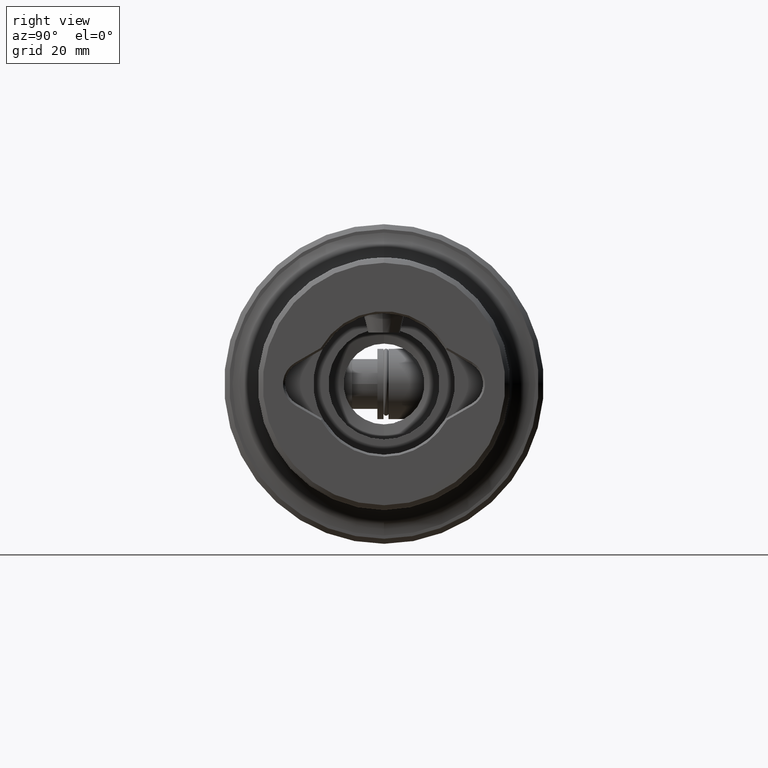
[diagram: clean part render]
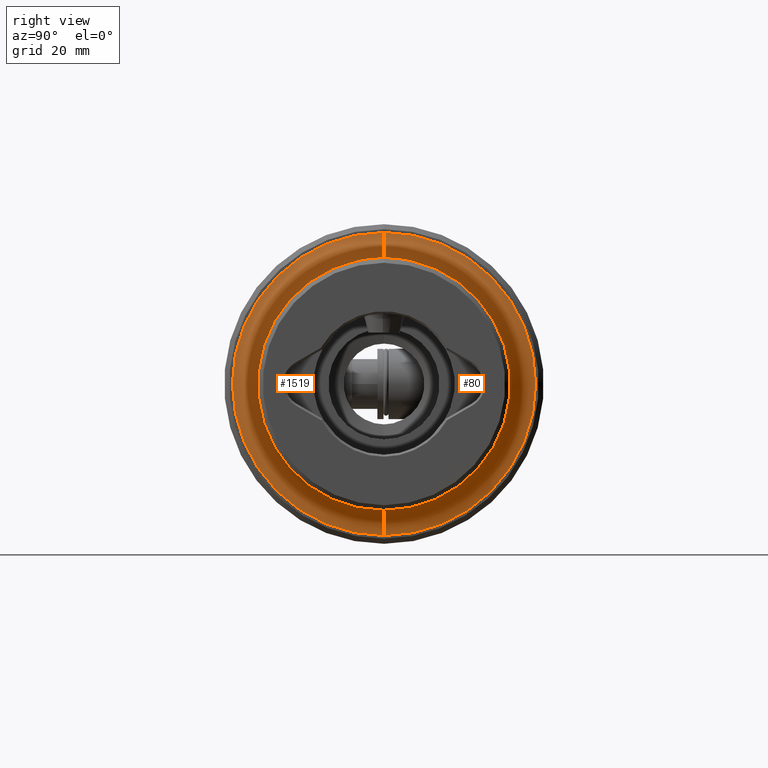
[diagram: same view with one multi-face feature highlighted, each face labeled with its STEP entity id]
A machine part, right view. The highlighted faces form ONE feature: a constant-radius fillet chain: 2 tangent blend faces with common blend radius 5 mm. The faces share edges in the B-rep.
Their STEP definitions:
[1] entity #1519 (Torus):
#819 = ORIENTED_EDGE ( 'NONE', *, *, #1315, .F. ) ;
#820 = ORIENTED_EDGE ( 'NONE', *, *, #1316, .F. ) ;
#821 = ORIENTED_EDGE ( 'NONE', *, *, #1314, .T. ) ;
#822 = ORIENTED_EDGE ( 'NONE', *, *, #1317, .F. ) ;
#1314 = EDGE_CURVE ( 'NONE', #1736, #1867, #3183, .T. ) ;
#1315 = EDGE_CURVE ( 'NONE', #1736, #1856, #3186, .T. ) ;
#1316 = EDGE_CURVE ( 'NONE', #1759, #1867, #3166, .T. ) ;
#1317 = EDGE_CURVE ( 'NONE', #1856, #1759, #3162, .T. ) ;
#1519 = ADVANCED_FACE ( 'NONE', ( #2388 ), #4591, .F. ) ;
#1736 = VERTEX_POINT ( 'NONE', #4965 ) ;
#1759 = VERTEX_POINT ( 'NONE', #4988 ) ;
#1856 = VERTEX_POINT ( 'NONE', #5085 ) ;
#1867 = VERTEX_POINT ( 'NONE', #5096 ) ;
#1882 = EDGE_LOOP ( 'NONE', ( #819, #821, #820, #822 ) ) ;
#2388 = FACE_OUTER_BOUND ( 'NONE', #1882, .T. ) ;
#3162 = CIRCLE ( 'NONE', #3190, 5.000000000000000900 ) ;
#3166 = CIRCLE ( 'NONE', #3188, 25.00000000000000000 ) ;
#3183 = CIRCLE ( 'NONE', #3185, 5.000000000000000900 ) ;
#3185 = AXIS2_PLACEMENT_3D ( 'NONE', #3713, #3714, #3715 ) ;
#3186 = CIRCLE ( 'NONE', #3187, 30.00000000000000400 ) ;
#3187 = AXIS2_PLACEMENT_3D ( 'NONE', #3716, #3717, #3718 ) ;
#3188 = AXIS2_PLACEMENT_3D ( 'NONE', #3719, #3720, #3721 ) ;
#3190 = AXIS2_PLACEMENT_3D ( 'NONE', #3722, #3723, #3724 ) ;
#3713 = CARTESIAN_POINT ( 'NONE',  ( 57.00000000000000000, 3.673940397442060000E-015, -30.00000000000000400 ) ) ;
#3714 = DIRECTION ( 'NONE',  ( -0.0000000000000000000, 1.000000000000000000, 1.224646799147353200E-016 ) ) ;
#3715 = DIRECTION ( 'NONE',  ( 0.0000000000000000000, -1.224646799147353500E-016, 1.000000000000000000 ) ) ;
#3716 = CARTESIAN_POINT ( 'NONE',  ( 52.00000000000000700, 0.0000000000000000000, 0.0000000000000000000 ) ) ;
#3717 = DIRECTION ( 'NONE',  ( -1.000000000000000000, -0.0000000000000000000, -0.0000000000000000000 ) ) ;
#3718 = DIRECTION ( 'NONE',  ( 0.0000000000000000000, 0.0000000000000000000, 1.000000000000000000 ) ) ;
#3719 = CARTESIAN_POINT ( 'NONE',  ( 57.00000000000000000, 0.0000000000000000000, 0.0000000000000000000 ) ) ;
#3720 = DIRECTION ( 'NONE',  ( 1.000000000000000000, 0.0000000000000000000, 0.0000000000000000000 ) ) ;
#3721 = DIRECTION ( 'NONE',  ( 0.0000000000000000000, 0.0000000000000000000, 1.000000000000000000 ) ) ;
#3722 = CARTESIAN_POINT ( 'NONE',  ( 57.00000000000000000, 0.0000000000000000000, 30.00000000000000400 ) ) ;
#3723 = DIRECTION ( 'NONE',  ( 0.0000000000000000000, -1.000000000000000000, 0.0000000000000000000 ) ) ;
#3724 = DIRECTION ( 'NONE',  ( 0.0000000000000000000, 0.0000000000000000000, -1.000000000000000000 ) ) ;
#4590 = AXIS2_PLACEMENT_3D ( 'NONE', #4874, #4875, #4876 ) ;
#4591 = TOROIDAL_SURFACE ( 'NONE', #4590, 30.00000000000000400, 5.000000000000000000 ) ;
#4874 = CARTESIAN_POINT ( 'NONE',  ( 57.00000000000000000, 0.0000000000000000000, 0.0000000000000000000 ) ) ;
#4875 = DIRECTION ( 'NONE',  ( -1.000000000000000000, -0.0000000000000000000, -0.0000000000000000000 ) ) ;
#4876 = DIRECTION ( 'NONE',  ( 0.0000000000000000000, 0.0000000000000000000, 1.000000000000000000 ) ) ;
#4965 = CARTESIAN_POINT ( 'NONE',  ( 52.00000000000000700, 3.673940397442059200E-015, -30.00000000000000400 ) ) ;
#4988 = CARTESIAN_POINT ( 'NONE',  ( 57.00000000000000000, 0.0000000000000000000, 25.00000000000000000 ) ) ;
#5085 = CARTESIAN_POINT ( 'NONE',  ( 52.00000000000000700, 0.0000000000000000000, 30.00000000000000400 ) ) ;
#5096 = CARTESIAN_POINT ( 'NONE',  ( 57.00000000000000000, 3.061616997868383000E-015, -25.00000000000000000 ) ) ;
[2] entity #80 (Torus):
#80 = ADVANCED_FACE ( 'NONE', ( #2094 ), #311, .F. ) ;
#210 = EDGE_CURVE ( 'NONE', #1867, #1759, #3069, .T. ) ;
#216 = EDGE_CURVE ( 'NONE', #1856, #1736, #3079, .T. ) ;
#302 = AXIS2_PLACEMENT_3D ( 'NONE', #1158, #1159, #1160 ) ;
#311 = TOROIDAL_SURFACE ( 'NONE', #302, 30.00000000000000400, 5.000000000000000000 ) ;
#569 = ORIENTED_EDGE ( 'NONE', *, *, #210, .F. ) ;
#570 = ORIENTED_EDGE ( 'NONE', *, *, #1314, .F. ) ;
#571 = ORIENTED_EDGE ( 'NONE', *, *, #216, .F. ) ;
#572 = ORIENTED_EDGE ( 'NONE', *, *, #1317, .T. ) ;
#1158 = CARTESIAN_POINT ( 'NONE',  ( 57.00000000000000000, 0.0000000000000000000, 0.0000000000000000000 ) ) ;
#1159 = DIRECTION ( 'NONE',  ( -1.000000000000000000, -0.0000000000000000000, -0.0000000000000000000 ) ) ;
#1160 = DIRECTION ( 'NONE',  ( 0.0000000000000000000, 0.0000000000000000000, 1.000000000000000000 ) ) ;
#1314 = EDGE_CURVE ( 'NONE', #1736, #1867, #3183, .T. ) ;
#1317 = EDGE_CURVE ( 'NONE', #1856, #1759, #3162, .T. ) ;
#1736 = VERTEX_POINT ( 'NONE', #4965 ) ;
#1759 = VERTEX_POINT ( 'NONE', #4988 ) ;
#1856 = VERTEX_POINT ( 'NONE', #5085 ) ;
#1867 = VERTEX_POINT ( 'NONE', #5096 ) ;
#1980 = EDGE_LOOP ( 'NONE', ( #570, #571, #572, #569 ) ) ;
#2094 = FACE_OUTER_BOUND ( 'NONE', #1980, .T. ) ;
#3069 = CIRCLE ( 'NONE', #3071, 25.00000000000000000 ) ;
#3071 = AXIS2_PLACEMENT_3D ( 'NONE', #3266, #3267, #3268 ) ;
#3079 = CIRCLE ( 'NONE', #3080, 30.00000000000000400 ) ;
#3080 = AXIS2_PLACEMENT_3D ( 'NONE', #3319, #3320, #3321 ) ;
#3162 = CIRCLE ( 'NONE', #3190, 5.000000000000000900 ) ;
#3183 = CIRCLE ( 'NONE', #3185, 5.000000000000000900 ) ;
#3185 = AXIS2_PLACEMENT_3D ( 'NONE', #3713, #3714, #3715 ) ;
#3190 = AXIS2_PLACEMENT_3D ( 'NONE', #3722, #3723, #3724 ) ;
#3266 = CARTESIAN_POINT ( 'NONE',  ( 57.00000000000000000, 0.0000000000000000000, 0.0000000000000000000 ) ) ;
#3267 = DIRECTION ( 'NONE',  ( 1.000000000000000000, 0.0000000000000000000, 0.0000000000000000000 ) ) ;
#3268 = DIRECTION ( 'NONE',  ( 0.0000000000000000000, 0.0000000000000000000, 1.000000000000000000 ) ) ;
#3319 = CARTESIAN_POINT ( 'NONE',  ( 52.00000000000000700, 0.0000000000000000000, 0.0000000000000000000 ) ) ;
#3320 = DIRECTION ( 'NONE',  ( -1.000000000000000000, -0.0000000000000000000, -0.0000000000000000000 ) ) ;
#3321 = DIRECTION ( 'NONE',  ( 0.0000000000000000000, 0.0000000000000000000, 1.000000000000000000 ) ) ;
#3713 = CARTESIAN_POINT ( 'NONE',  ( 57.00000000000000000, 3.673940397442060000E-015, -30.00000000000000400 ) ) ;
#3714 = DIRECTION ( 'NONE',  ( -0.0000000000000000000, 1.000000000000000000, 1.224646799147353200E-016 ) ) ;
#3715 = DIRECTION ( 'NONE',  ( 0.0000000000000000000, -1.224646799147353500E-016, 1.000000000000000000 ) ) ;
#3722 = CARTESIAN_POINT ( 'NONE',  ( 57.00000000000000000, 0.0000000000000000000, 30.00000000000000400 ) ) ;
#3723 = DIRECTION ( 'NONE',  ( 0.0000000000000000000, -1.000000000000000000, 0.0000000000000000000 ) ) ;
#3724 = DIRECTION ( 'NONE',  ( 0.0000000000000000000, 0.0000000000000000000, -1.000000000000000000 ) ) ;
#4965 = CARTESIAN_POINT ( 'NONE',  ( 52.00000000000000700, 3.673940397442059200E-015, -30.00000000000000400 ) ) ;
#4988 = CARTESIAN_POINT ( 'NONE',  ( 57.00000000000000000, 0.0000000000000000000, 25.00000000000000000 ) ) ;
#5085 = CARTESIAN_POINT ( 'NONE',  ( 52.00000000000000700, 0.0000000000000000000, 30.00000000000000400 ) ) ;
#5096 = CARTESIAN_POINT ( 'NONE',  ( 57.00000000000000000, 3.061616997868383000E-015, -25.00000000000000000 ) ) ;